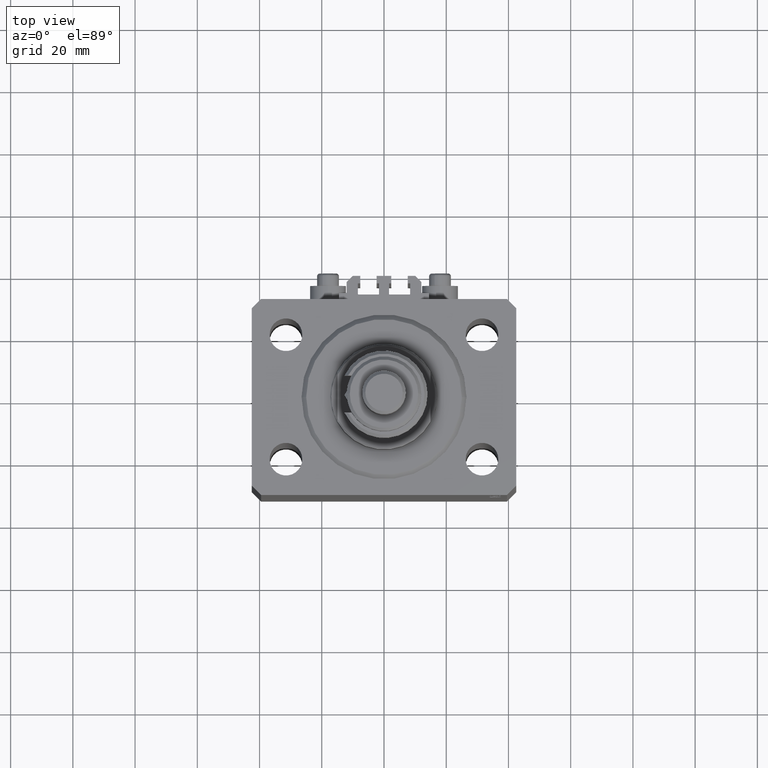
[diagram: clean part render]
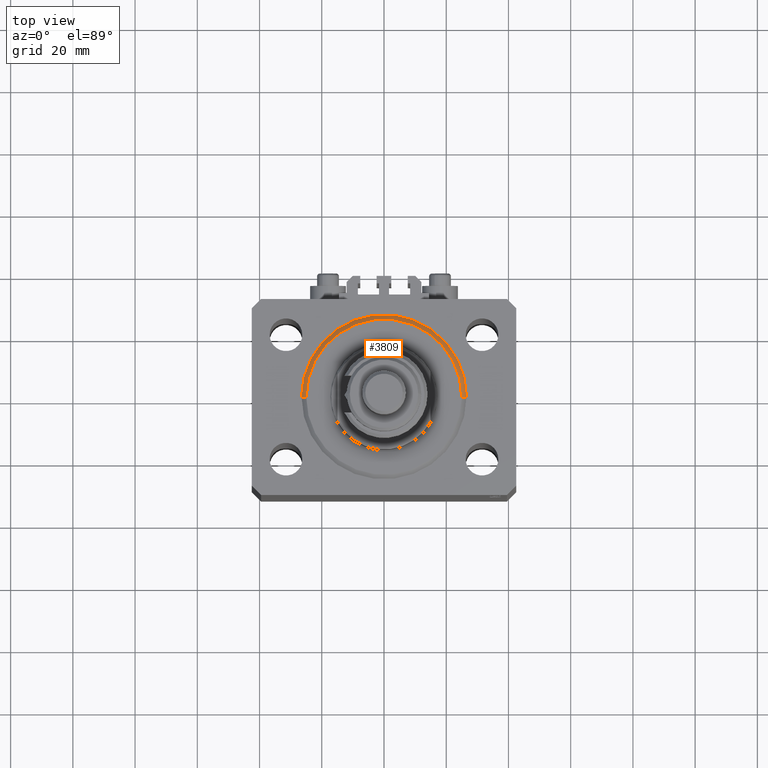
[diagram: same view with one face highlighted and labeled with its STEP entity id]
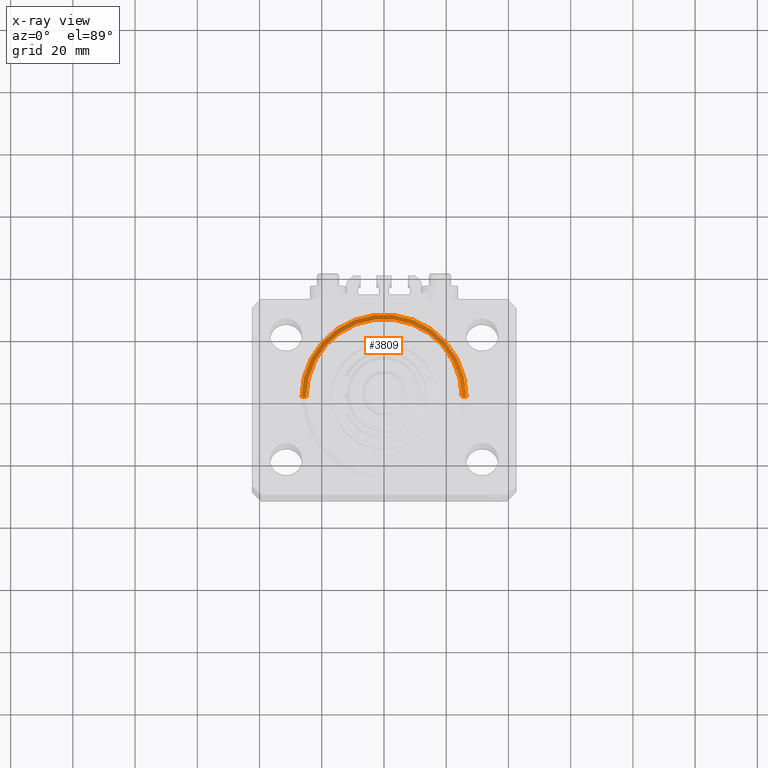
[diagram: x-ray of the same camera — body ghosted, the highlighted face saturated]
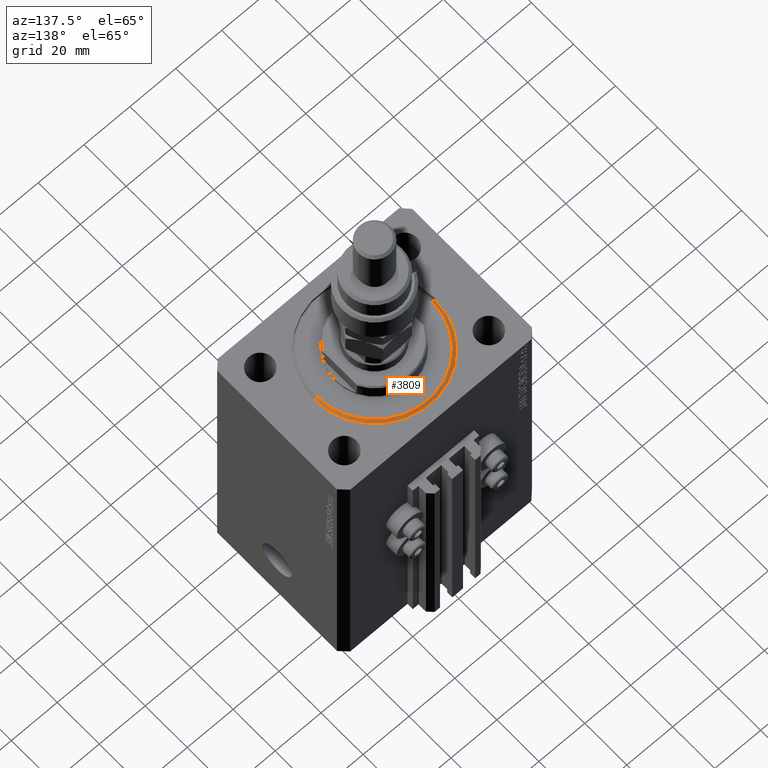
[diagram: same view with one face highlighted and labeled with its STEP entity id]
A machine part, top view. The second image highlights one B-rep face of the part: STEP entity #3809.
The next image is the same camera in x-ray: the body ghosted, the highlighted face saturated — about 0% of this face is hidden behind the body in this view.
A second angle (auxiliary view) of the same face is appended — the face is thin or edge-on in the first view.
In plain terms, the highlighted conical surface has half-angle 45 deg.
Its self-contained STEP definition (entity closure, byte-faithful):
#1553 = EDGE_CURVE ( 'NONE', #5805, #18070, #49567, .T. ) ;
#2952 = EDGE_LOOP ( 'NONE', ( #35567, #6811, #15216, #12224 ) ) ;
#3531 = LINE ( 'NONE', #46651, #43424 ) ;
#3703 = AXIS2_PLACEMENT_3D ( 'NONE', #25973, #14016, #44744 ) ;
#3809 = ADVANCED_FACE ( 'NONE', ( #13771 ), #44206, .T. ) ;
#4965 = EDGE_CURVE ( 'NONE', #9542, #31547, #41825, .T. ) ;
#5805 = VERTEX_POINT ( 'NONE', #23004 ) ;
#5889 = CARTESIAN_POINT ( 'NONE',  ( 0.000000000000000000, 0.000000000000000000, 1.500000000000018652 ) ) ;
#6811 = ORIENTED_EDGE ( 'NONE', *, *, #34954, .T. ) ;
#9064 = AXIS2_PLACEMENT_3D ( 'NONE', #5889, #41149, #13222 ) ;
#9542 = VERTEX_POINT ( 'NONE', #41984 ) ;
#12224 = ORIENTED_EDGE ( 'NONE', *, *, #43792, .F. ) ;
#13222 = DIRECTION ( 'NONE',  ( 1.000000000000000000, 0.000000000000000000, 0.000000000000000000 ) ) ;
#13771 = FACE_OUTER_BOUND ( 'NONE', #2952, .T. ) ;
#14016 = DIRECTION ( 'NONE',  ( -0.000000000000000000, -0.000000000000000000, 1.000000000000000000 ) ) ;
#15216 = ORIENTED_EDGE ( 'NONE', *, *, #1553, .F. ) ;
#15918 = DIRECTION ( 'NONE',  ( -0.7071067811865483499, 8.659560562354942719E-17, 0.7071067811865466846 ) ) ;
#16349 = DIRECTION ( 'NONE',  ( 1.000000000000000000, 0.000000000000000000, 0.000000000000000000 ) ) ;
#16978 = VECTOR ( 'NONE', #34816, 1000.000000000000000 ) ;
#18070 = VERTEX_POINT ( 'NONE', #46089 ) ;
#23004 = CARTESIAN_POINT ( 'NONE',  ( 26.50000000000000355, 3.245314017740486554E-15, 1.500000000000018652 ) ) ;
#25973 = CARTESIAN_POINT ( 'NONE',  ( 0.000000000000000000, 0.000000000000000000, 1.500000000000018652 ) ) ;
#31547 = VERTEX_POINT ( 'NONE', #45669 ) ;
#32089 = CARTESIAN_POINT ( 'NONE',  ( 0.000000000000000000, 0.000000000000000000, 0.000000000000000000 ) ) ;
#34816 = DIRECTION ( 'NONE',  ( 0.7071067811865483499, 0.000000000000000000, 0.7071067811865466846 ) ) ;
#34954 = EDGE_CURVE ( 'NONE', #9542, #18070, #3531, .T. ) ;
#35567 = ORIENTED_EDGE ( 'NONE', *, *, #4965, .F. ) ;
#36129 = DIRECTION ( 'NONE',  ( -0.000000000000000000, -0.000000000000000000, -1.000000000000000000 ) ) ;
#39777 = CARTESIAN_POINT ( 'NONE',  ( 26.50000000000000355, 0.000000000000000000, 1.500000000000018652 ) ) ;
#41149 = DIRECTION ( 'NONE',  ( -0.000000000000000000, -0.000000000000000000, 1.000000000000000000 ) ) ;
#41825 = CIRCLE ( 'NONE', #43440, 24.99999999999998224 ) ;
#41984 = CARTESIAN_POINT ( 'NONE',  ( -24.99999999999998224, 3.153465507804433615E-15, 0.000000000000000000 ) ) ;
#43424 = VECTOR ( 'NONE', #15918, 1000.000000000000000 ) ;
#43440 = AXIS2_PLACEMENT_3D ( 'NONE', #32089, #36129, #16349 ) ;
#43583 = LINE ( 'NONE', #39777, #16978 ) ;
#43792 = EDGE_CURVE ( 'NONE', #31547, #5805, #43583, .T. ) ;
#44206 = CONICAL_SURFACE ( 'NONE', #3703, 26.50000000000000355, 0.7853981633974495002 ) ;
#44744 = DIRECTION ( 'NONE',  ( 1.000000000000000000, 0.000000000000000000, 0.000000000000000000 ) ) ;
#45669 = CARTESIAN_POINT ( 'NONE',  ( 24.99999999999998224, 0.000000000000000000, 0.000000000000000000 ) ) ;
#46089 = CARTESIAN_POINT ( 'NONE',  ( -26.50000000000000355, 0.000000000000000000, 1.500000000000018652 ) ) ;
#46651 = CARTESIAN_POINT ( 'NONE',  ( -26.50000000000000355, 3.245314017740486554E-15, 1.500000000000018652 ) ) ;
#49567 = CIRCLE ( 'NONE', #9064, 26.50000000000000355 ) ;